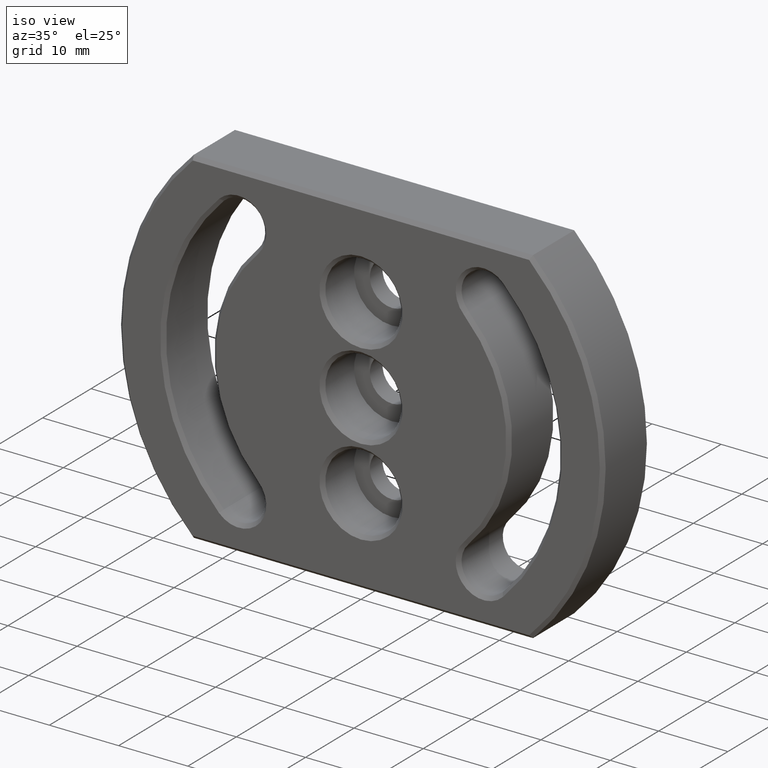
[diagram: clean part render]
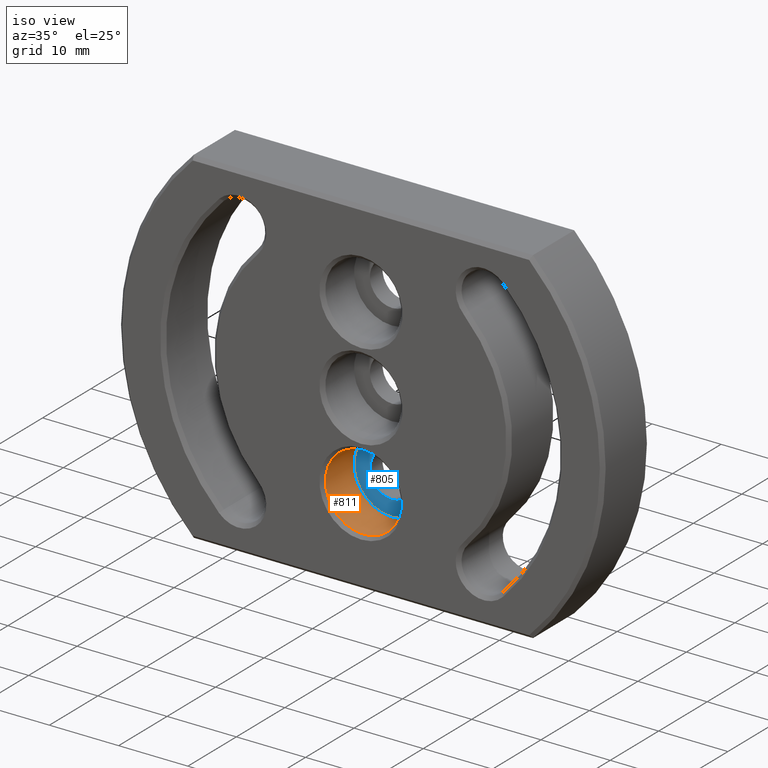
[diagram: same view with the hole feature highlighted: cylindrical wall and planar end face, labeled with their STEP entity ids]
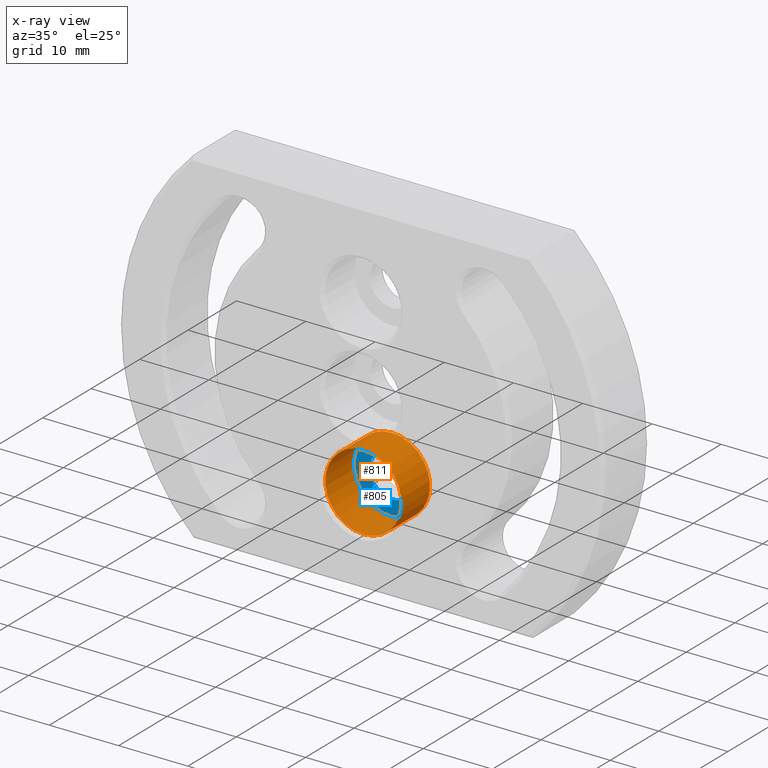
[diagram: x-ray of the same camera — body ghosted, the hole faces saturated]
A machine part, iso view. The highlighted faces form one hole feature of diameter 11 mm: the cylindrical wall (entity #811, orange) and its adjacent planar end face (entity #805, blue) — they share a circular edge in the B-rep.
The next image is the same camera in x-ray (body ghosted, the hole faces saturated) — the bore reads through the body.
Wall:
#21 = CARTESIAN_POINT ( 'NONE',  ( 0.0000000000000000000, 6.399999999999999500, -17.99999999999999600 ) ) ;
#136 = CARTESIAN_POINT ( 'NONE',  ( 0.0000000000000000000, 0.4999999999999865700, -12.50000000000000000 ) ) ;
#143 = CARTESIAN_POINT ( 'NONE',  ( 0.0000000000000000000, 0.4999999999999865700, -7.000000000000005300 ) ) ;
#221 = DIRECTION ( 'NONE',  ( 0.0000000000000000000, 0.0000000000000000000, -1.000000000000000000 ) ) ;
#298 = DIRECTION ( 'NONE',  ( 0.0000000000000000000, -1.000000000000000000, 0.0000000000000000000 ) ) ;
#340 = DIRECTION ( 'NONE',  ( -0.0000000000000000000, -1.000000000000000000, -0.0000000000000000000 ) ) ;
#358 = DIRECTION ( 'NONE',  ( 0.0000000000000000000, 0.0000000000000000000, -1.000000000000000000 ) ) ;
#367 = CARTESIAN_POINT ( 'NONE',  ( 0.0000000000000000000, 6.399999999999999500, -12.50000000000000000 ) ) ;
#396 = DIRECTION ( 'NONE',  ( -0.0000000000000000000, -1.000000000000000000, -0.0000000000000000000 ) ) ;
#411 = CARTESIAN_POINT ( 'NONE',  ( 0.0000000000000000000, 0.0000000000000000000, -12.50000000000000000 ) ) ;
#462 = DIRECTION ( 'NONE',  ( 0.0000000000000000000, 0.0000000000000000000, 1.000000000000000000 ) ) ;
#661 = AXIS2_PLACEMENT_3D ( 'NONE', #411, #340, #221 ) ;
#700 = EDGE_CURVE ( 'NONE', #1205, #1205, #1432, .T. ) ;
#721 = AXIS2_PLACEMENT_3D ( 'NONE', #136, #298, #462 ) ;
#737 = AXIS2_PLACEMENT_3D ( 'NONE', #367, #396, #358 ) ;
#765 = EDGE_CURVE ( 'NONE', #1449, #1449, #1054, .T. ) ;
#811 = ADVANCED_FACE ( 'NONE', ( #983, #980 ), #989, .F. ) ;
#939 = ORIENTED_EDGE ( 'NONE', *, *, #700, .T. ) ;
#980 = FACE_OUTER_BOUND ( 'NONE', #1121, .T. ) ;
#983 = FACE_OUTER_BOUND ( 'NONE', #1439, .T. ) ;
#989 = CYLINDRICAL_SURFACE ( 'NONE', #661, 5.499999999999994700 ) ;
#1054 = CIRCLE ( 'NONE', #737, 5.499999999999994700 ) ;
#1121 = EDGE_LOOP ( 'NONE', ( #1335 ) ) ;
#1205 = VERTEX_POINT ( 'NONE', #143 ) ;
#1335 = ORIENTED_EDGE ( 'NONE', *, *, #765, .F. ) ;
#1432 = CIRCLE ( 'NONE', #721, 5.499999999999995600 ) ;
#1439 = EDGE_LOOP ( 'NONE', ( #939 ) ) ;
#1449 = VERTEX_POINT ( 'NONE', #21 ) ;
End face:
#21 = CARTESIAN_POINT ( 'NONE',  ( 0.0000000000000000000, 6.399999999999999500, -17.99999999999999600 ) ) ;
#26 = CARTESIAN_POINT ( 'NONE',  ( 3.199999999999998800, 6.399999999999999500, -12.50000000000000000 ) ) ;
#107 = DIRECTION ( 'NONE',  ( 0.0000000000000000000, 1.000000000000000000, 0.0000000000000000000 ) ) ;
#148 = CARTESIAN_POINT ( 'NONE',  ( 0.0000000000000000000, 6.399999999999999500, -15.69999999999999900 ) ) ;
#154 = DIRECTION ( 'NONE',  ( -0.0000000000000000000, -1.000000000000000000, -0.0000000000000000000 ) ) ;
#269 = DIRECTION ( 'NONE',  ( 0.0000000000000000000, 0.0000000000000000000, -1.000000000000000000 ) ) ;
#358 = DIRECTION ( 'NONE',  ( 0.0000000000000000000, 0.0000000000000000000, -1.000000000000000000 ) ) ;
#367 = CARTESIAN_POINT ( 'NONE',  ( 0.0000000000000000000, 6.399999999999999500, -12.50000000000000000 ) ) ;
#368 = CARTESIAN_POINT ( 'NONE',  ( 0.0000000000000000000, 6.399999999999999500, -12.50000000000000000 ) ) ;
#379 = PLANE ( 'NONE',  #640 ) ;
#396 = DIRECTION ( 'NONE',  ( -0.0000000000000000000, -1.000000000000000000, -0.0000000000000000000 ) ) ;
#474 = DIRECTION ( 'NONE',  ( 0.0000000000000000000, -0.0000000000000000000, 1.000000000000000000 ) ) ;
#571 = EDGE_CURVE ( 'NONE', #1030, #1030, #1035, .T. ) ;
#608 = AXIS2_PLACEMENT_3D ( 'NONE', #368, #154, #269 ) ;
#640 = AXIS2_PLACEMENT_3D ( 'NONE', #26, #107, #474 ) ;
#737 = AXIS2_PLACEMENT_3D ( 'NONE', #367, #396, #358 ) ;
#765 = EDGE_CURVE ( 'NONE', #1449, #1449, #1054, .T. ) ;
#805 = ADVANCED_FACE ( 'NONE', ( #836, #986 ), #379, .F. ) ;
#836 = FACE_BOUND ( 'NONE', #1095, .T. ) ;
#986 = FACE_OUTER_BOUND ( 'NONE', #1340, .T. ) ;
#1030 = VERTEX_POINT ( 'NONE', #148 ) ;
#1035 = CIRCLE ( 'NONE', #608, 3.199999999999998000 ) ;
#1046 = ORIENTED_EDGE ( 'NONE', *, *, #571, .F. ) ;
#1054 = CIRCLE ( 'NONE', #737, 5.499999999999994700 ) ;
#1095 = EDGE_LOOP ( 'NONE', ( #1046 ) ) ;
#1254 = ORIENTED_EDGE ( 'NONE', *, *, #765, .T. ) ;
#1340 = EDGE_LOOP ( 'NONE', ( #1254 ) ) ;
#1449 = VERTEX_POINT ( 'NONE', #21 ) ;